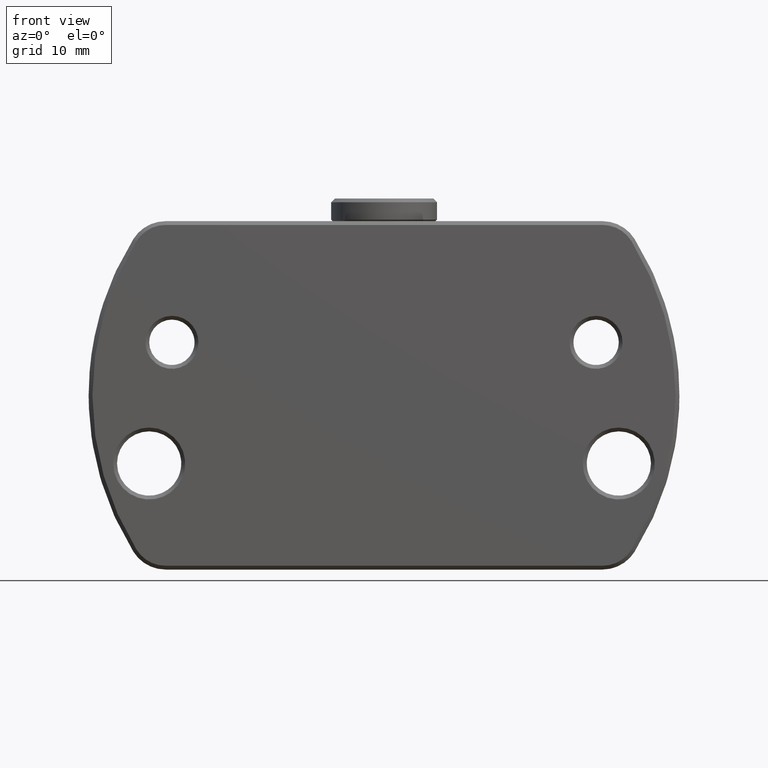
[diagram: clean part render]
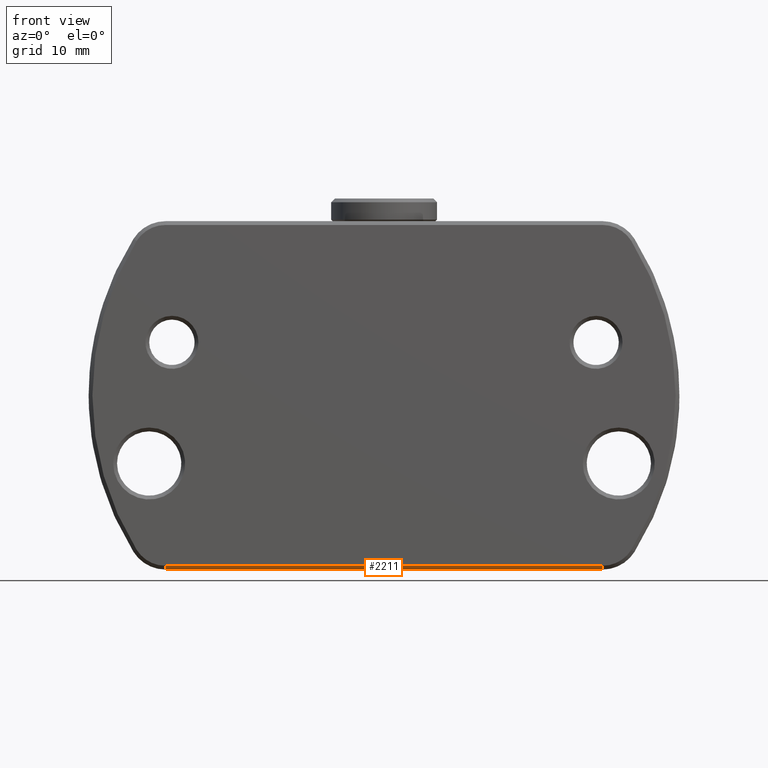
[diagram: same view with one face highlighted and labeled with its STEP entity id]
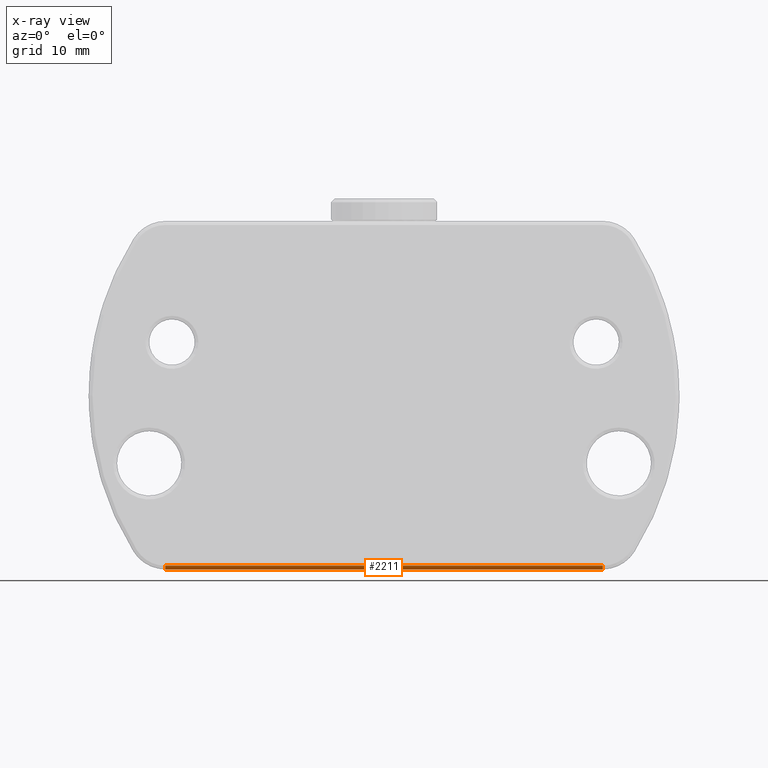
[diagram: x-ray of the same camera — body ghosted, the highlighted face saturated]
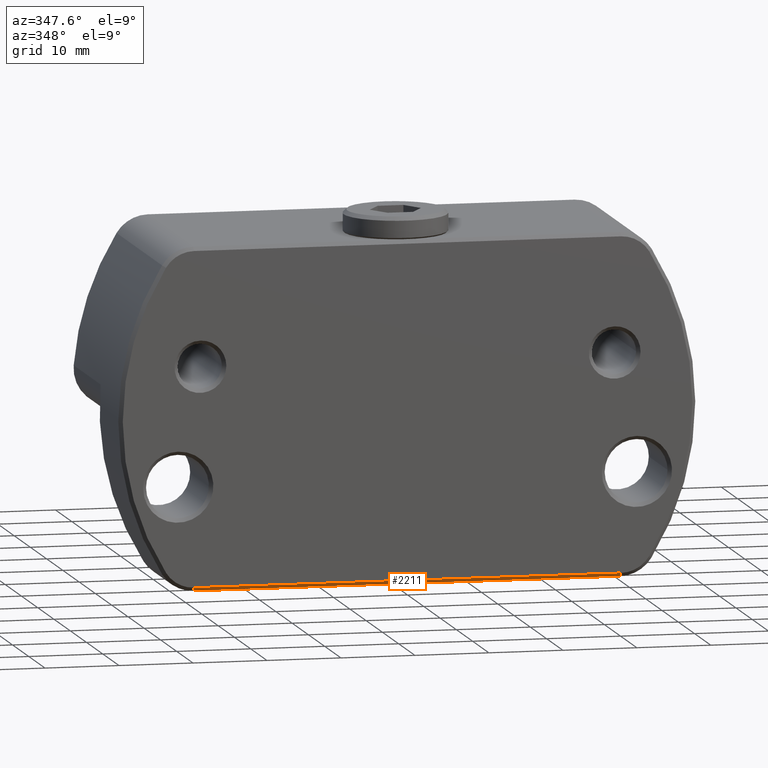
[diagram: same view with one face highlighted and labeled with its STEP entity id]
A machine part, front view. The second image highlights one B-rep face of the part: STEP entity #2211.
The next image is the same camera in x-ray: the body ghosted, the highlighted face saturated — about 0% of this face is hidden behind the body in this view.
A second angle (auxiliary view) of the same face is appended — the face is thin or edge-on in the first view.
In plain terms, the highlighted planar face has unit normal (0, -0.7071, -0.7071).
Its self-contained STEP definition (entity closure, byte-faithful):
#173=FACE_OUTER_BOUND('',#305,.T.);
#305=EDGE_LOOP('',(#1518,#1519,#1520,#1521));
#658=LINE('',#3612,#785);
#664=LINE('',#3651,#791);
#665=LINE('',#3654,#792);
#666=LINE('',#3655,#793);
#785=VECTOR('',#2785,57.68882014922);
#791=VECTOR('',#2827,0.707106782930253);
#792=VECTOR('',#2830,57.68882019226);
#793=VECTOR('',#2831,0.707106782930253);
#915=VERTEX_POINT('',#3609);
#916=VERTEX_POINT('',#3611);
#931=VERTEX_POINT('',#3649);
#932=VERTEX_POINT('',#3653);
#1148=EDGE_CURVE('',#915,#916,#658,.T.);
#1168=EDGE_CURVE('',#915,#931,#664,.T.);
#1169=EDGE_CURVE('',#931,#932,#665,.T.);
#1170=EDGE_CURVE('',#916,#932,#666,.T.);
#1518=ORIENTED_EDGE('',*,*,#1169,.T.);
#1519=ORIENTED_EDGE('',*,*,#1170,.F.);
#1520=ORIENTED_EDGE('',*,*,#1148,.F.);
#1521=ORIENTED_EDGE('',*,*,#1168,.T.);
#2169=PLANE('',#2446);
#2211=ADVANCED_FACE('',(#173),#2169,.T.);
#2446=AXIS2_PLACEMENT_3D('',#3652,#2828,#2829);
#2785=DIRECTION('',(1.,0.,0.));
#2827=DIRECTION('',(-3.0429316244692E-8,0.707106781186547,-0.707106781186547));
#2828=DIRECTION('center_axis',(0.,-0.707106781186548,-0.707106781186548));
#2829=DIRECTION('ref_axis',(0.,0.707106781186548,-0.707106781186548));
#2830=DIRECTION('',(1.,0.,0.));
#2831=DIRECTION('',(3.0429326293282E-8,0.707106781186547,-0.707106781186547));
#3609=CARTESIAN_POINT('',(-28.84441007461,-3.88171394886478E-9,-22.4999999961171));
#3611=CARTESIAN_POINT('',(28.84441007461,-3.88171460345798E-9,-22.4999999961171));
#3612=CARTESIAN_POINT('',(-28.84441007461,-7.398290554258E-9,-22.4999999926));
#3649=CARTESIAN_POINT('',(-28.8444100961296,0.499999996146438,-22.9999999959526));
#3651=CARTESIAN_POINT('',(-28.84441007461,-7.398290554258E-9,-22.4999999926));
#3652=CARTESIAN_POINT('Origin',(0.,0.25,-22.75));
#3653=CARTESIAN_POINT('',(28.8444100961292,0.499999996146433,-22.9999999959512));
#3654=CARTESIAN_POINT('',(-28.84441009613,0.4999999938348,-22.99999999383));
#3655=CARTESIAN_POINT('',(28.84441007461,-7.39829469909E-9,-22.4999999926));